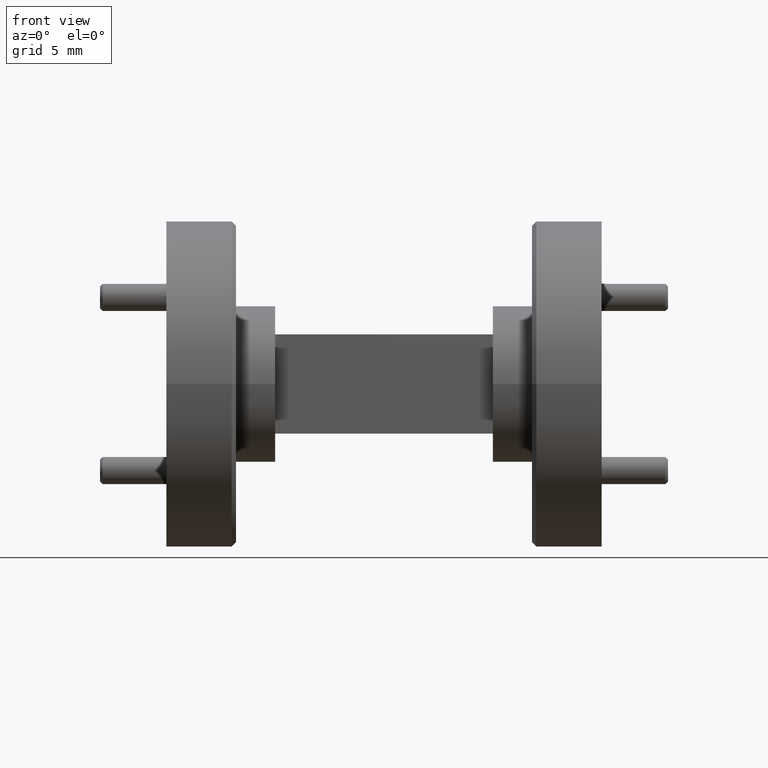
[diagram: clean part render]
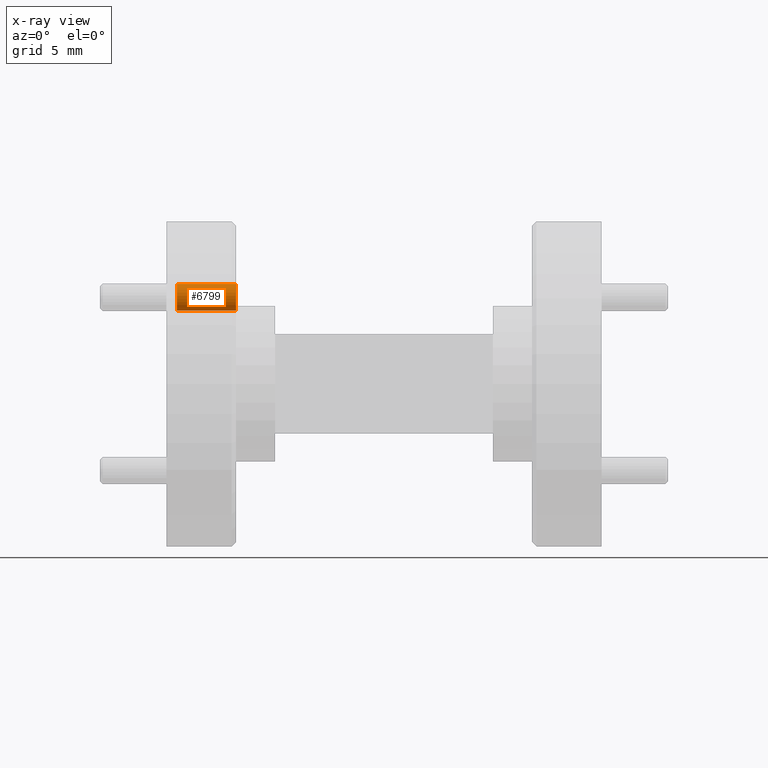
[diagram: x-ray — body ghosted, one internal face saturated and labeled with its STEP entity id]
A machine part, front view, then the same camera in x-ray: the body is ghosted and one INTERNAL B-rep face — a face not visible from any outside direction — is saturated and labeled: STEP entity #6799.
In plain terms, the highlighted cylindrical surface (edge-blend (fillet) strip) has radius 0.781 mm, axis along (-1, -0, -0).
Its self-contained STEP definition (entity closure, byte-faithful):
#44 = ORIENTED_EDGE ( 'NONE', *, *, #4947, .T. ) ;
#294 = LINE ( 'NONE', #3675, #6319 ) ;
#618 = AXIS2_PLACEMENT_3D ( 'NONE', #6194, #1670, #6869 ) ;
#724 = VERTEX_POINT ( 'NONE', #6758 ) ;
#775 = EDGE_CURVE ( 'NONE', #724, #2760, #2701, .T. ) ;
#956 = ORIENTED_EDGE ( 'NONE', *, *, #5451, .T. ) ;
#1138 = AXIS2_PLACEMENT_3D ( 'NONE', #3560, #5191, #5817 ) ;
#1258 = CARTESIAN_POINT ( 'NONE',  ( 0.1600000000000000588, -0.1988737822087169038, 0.2296237822087159874 ) ) ;
#1670 = DIRECTION ( 'NONE',  ( -1.000000000000000000, -0.000000000000000000, -0.000000000000000000 ) ) ;
#1874 = VERTEX_POINT ( 'NONE', #1258 ) ;
#1923 = CARTESIAN_POINT ( 'NONE',  ( 0.02425000000000015685, -0.1988737822087169038, 0.2296237822087159042 ) ) ;
#2457 = CARTESIAN_POINT ( 'NONE',  ( 0.1600000000000000588, -0.1988737822087169038, 0.1681237822087161549 ) ) ;
#2555 = DIRECTION ( 'NONE',  ( 1.000000000000000000, 1.224646799147353454E-16, -0.000000000000000000 ) ) ;
#2562 = VERTEX_POINT ( 'NONE', #2457 ) ;
#2613 = VECTOR ( 'NONE', #2646, 39.37007874015748143 ) ;
#2646 = DIRECTION ( 'NONE',  ( -1.000000000000000000, -0.000000000000000000, -0.000000000000000000 ) ) ;
#2701 = CIRCLE ( 'NONE', #1138, 0.03074999999999983649 ) ;
#2760 = VERTEX_POINT ( 'NONE', #1923 ) ;
#2836 = EDGE_CURVE ( 'NONE', #1874, #2760, #294, .T. ) ;
#3118 = DIRECTION ( 'NONE',  ( -1.000000000000000000, -0.000000000000000000, -0.000000000000000000 ) ) ;
#3560 = CARTESIAN_POINT ( 'NONE',  ( 0.02425000000000015685, -0.1988737822087169038, 0.1988737822087160712 ) ) ;
#3675 = CARTESIAN_POINT ( 'NONE',  ( 0.02000000000000005940, -0.1988737822087169038, 0.2296237822087159874 ) ) ;
#3870 = ORIENTED_EDGE ( 'NONE', *, *, #2836, .F. ) ;
#4294 = CARTESIAN_POINT ( 'NONE',  ( 0.1600000000000000588, -0.1988737822087169038, 0.1988737822087160712 ) ) ;
#4947 = EDGE_CURVE ( 'NONE', #2562, #724, #5433, .T. ) ;
#5191 = DIRECTION ( 'NONE',  ( -1.000000000000000000, -0.000000000000000000, -0.000000000000000000 ) ) ;
#5433 = LINE ( 'NONE', #5474, #2613 ) ;
#5451 = EDGE_CURVE ( 'NONE', #1874, #2562, #6805, .T. ) ;
#5474 = CARTESIAN_POINT ( 'NONE',  ( 0.02000000000000005940, -0.1988737822087169038, 0.1681237822087161549 ) ) ;
#5657 = EDGE_LOOP ( 'NONE', ( #956, #44, #6046, #3870 ) ) ;
#5817 = DIRECTION ( 'NONE',  ( 0.000000000000000000, 0.000000000000000000, 1.000000000000000000 ) ) ;
#6046 = ORIENTED_EDGE ( 'NONE', *, *, #775, .T. ) ;
#6194 = CARTESIAN_POINT ( 'NONE',  ( 0.02000000000000005940, -0.1988737822087169038, 0.1988737822087160712 ) ) ;
#6319 = VECTOR ( 'NONE', #3118, 39.37007874015748143 ) ;
#6322 = AXIS2_PLACEMENT_3D ( 'NONE', #4294, #2555, #6460 ) ;
#6460 = DIRECTION ( 'NONE',  ( 0.000000000000000000, 1.000000000000000000, 0.000000000000000000 ) ) ;
#6640 = CYLINDRICAL_SURFACE ( 'NONE', #618, 0.03074999999999990588 ) ;
#6758 = CARTESIAN_POINT ( 'NONE',  ( 0.02425000000000015685, -0.1988737822087169038, 0.1681237822087162381 ) ) ;
#6799 = ADVANCED_FACE ( 'NONE', ( #7175 ), #6640, .F. ) ;
#6805 = CIRCLE ( 'NONE', #6322, 0.03074999999999990588 ) ;
#6869 = DIRECTION ( 'NONE',  ( 0.000000000000000000, 0.000000000000000000, 1.000000000000000000 ) ) ;
#7175 = FACE_OUTER_BOUND ( 'NONE', #5657, .T. ) ;